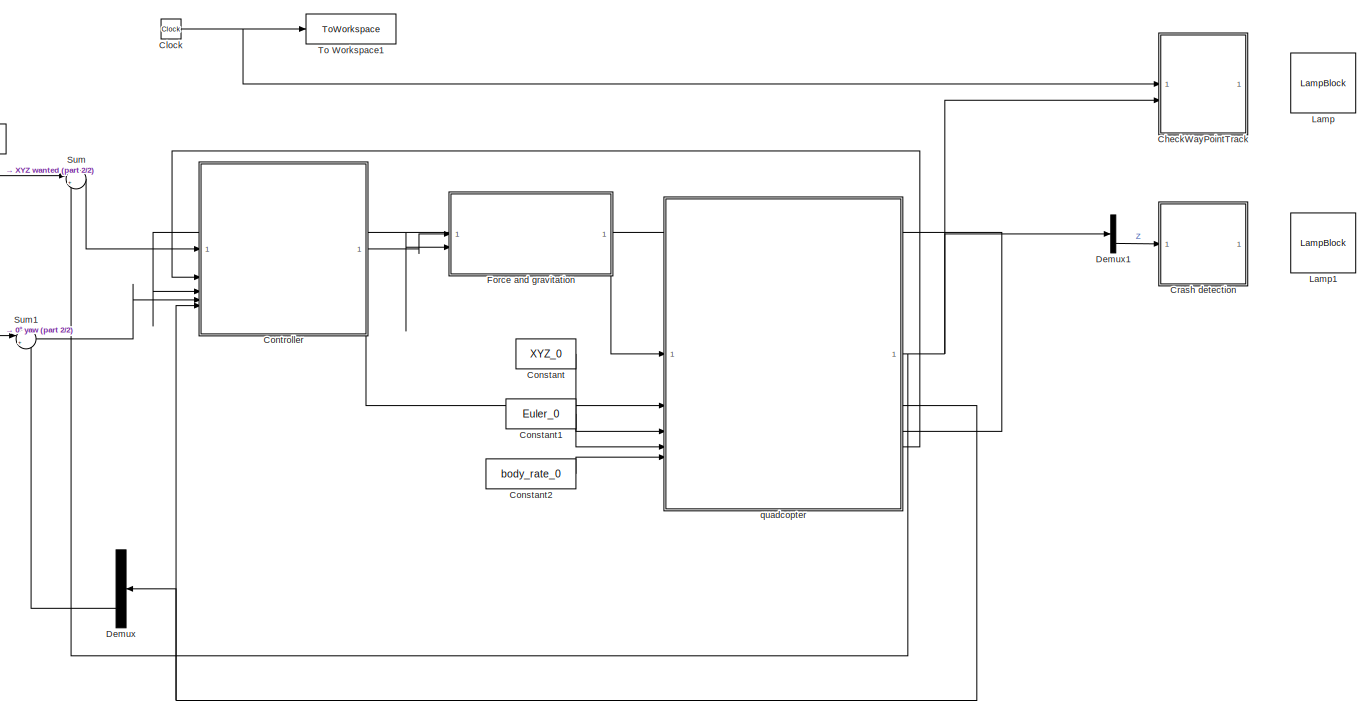
[diagram: root canvas - part 1/2, most of the canvas]
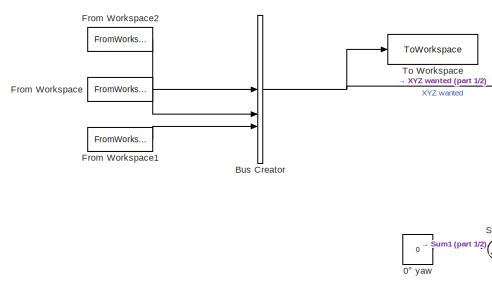
[diagram: root canvas - part 2/2, middle left region]
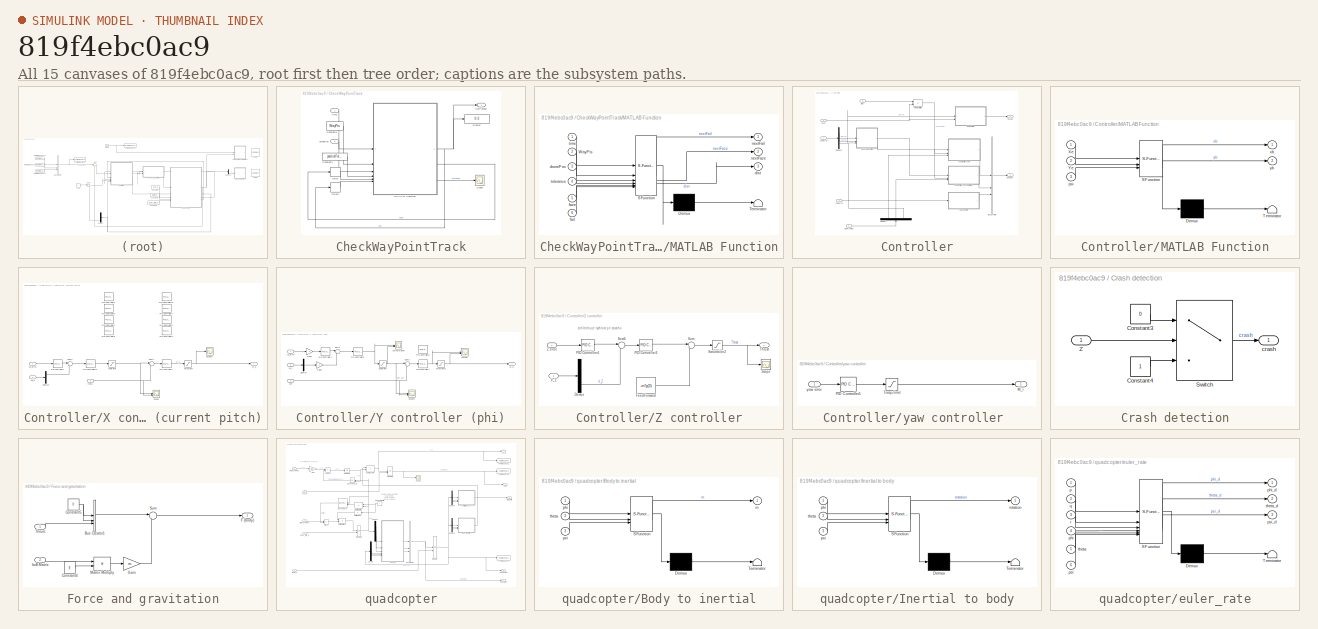
[diagram: thumbnail index - all 15 canvases of the model, root first then tree order]
MODEL slx_819f4ebc0ac9
KIND model
CONFIG AbsTol = auto
CONFIG EnableMultiTasking = off
CONFIG FixedStep = auto
CONFIG MaxStep = auto
CONFIG MinStep = auto
CONFIG RelTol = 1e-3
CONFIG SampleTimeConstraint = Unconstrained
CONFIG SolverName = VariableStepAuto
CONFIG StartTime = 0.0
CONFIG StopTime = Tfinal
BLOCK [Constant] 0° yaw
  Value = 0
BLOCK [BusCreator] Bus Creator
  DisplayOption = bar
  InheritFromInputs = on
  Inputs = 3
BLOCK [SubSystem] CheckWayPointTrack
BLOCK [Constant] CheckWayPointTrack/Constant3
  Value = WayPts
BLOCK [Constant] CheckWayPointTrack/Constant4
  Value = positionTolerance
BLOCK [Delay] CheckWayPointTrack/Delay
  DelayLength = 1
  InitialCondition = 1
  InputPortMap = u0
BLOCK [Delay] CheckWayPointTrack/Delay1
  DelayLength = 1
  InitialCondition = 0
  InputPortMap = u0
BLOCK [Display] CheckWayPointTrack/Display
  Decimation = 1
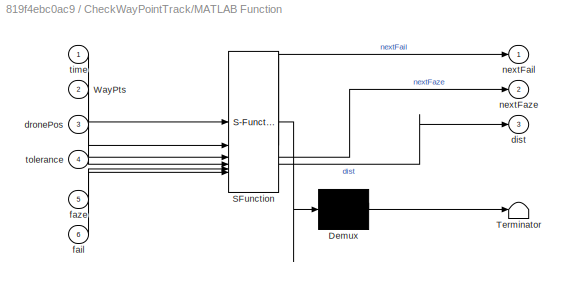
BLOCK [SubSystem] CheckWayPointTrack/MATLAB Function
  ErrorFcn = Stateflow.Translate.translate
  PermitHierarchicalResolution = ExplicitOnly
  SFBlockType = MATLAB Function
  TreatAsAtomicUnit = on
BLOCK [Demux] CheckWayPointTrack/MATLAB Function/ Demux 
  Outputs = 1
BLOCK [S-Function] CheckWayPointTrack/MATLAB Function/ SFunction 
  EnableBusSupport = on
  FunctionName = sf_sfun
  PortCounts = [6 4]
  SFcnIsStateOwnerBlock = off
  SFunctionDeploymentMode = off
  Tag = Stateflow S-Function 4
BLOCK [Terminator] CheckWayPointTrack/MATLAB Function/ Terminator 
BLOCK [Inport] CheckWayPointTrack/MATLAB Function/WayPts
  Port = 2
BLOCK [Outport] CheckWayPointTrack/MATLAB Function/dist
  Port = 3
BLOCK [Inport] CheckWayPointTrack/MATLAB Function/dronePos
  Port = 3
BLOCK [Inport] CheckWayPointTrack/MATLAB Function/fail
  Port = 6
BLOCK [Inport] CheckWayPointTrack/MATLAB Function/faze
  Port = 5
BLOCK [Outport] CheckWayPointTrack/MATLAB Function/nextFail
BLOCK [Outport] CheckWayPointTrack/MATLAB Function/nextFaze
  Port = 2
BLOCK [Inport] CheckWayPointTrack/MATLAB Function/time
BLOCK [Inport] CheckWayPointTrack/MATLAB Function/tolerance
  Port = 4
BLOCK [Outport] CheckWayPointTrack/NotPassed
BLOCK [Scope] CheckWayPointTrack/Scope
  Floating = off
  NumInputPorts = 1
  ScopeSpecificationString = Simulink.scopes.TimeScopeBlockCfg('CurrentConfiguration', extmgr.ConfigurationSet(extmgr.Configuration('Core','General UI',true),extmgr.Configuration('Core','Source UI',true),extmgr.Configuration('Sources','WiredSimulink',true,'DataLoggingVariableName','ScopeData1'),extmgr.Configuration('Visuals','Time Domain',true,'SerializedDisplays',{struct('MinYLimReal','-0.68947','MaxYLimReal','6.20524','YLab...<+1456ch>
BLOCK [Inport] CheckWayPointTrack/dronePos
  Port = 2
BLOCK [Inport] CheckWayPointTrack/time
BLOCK [Clock] Clock
BLOCK [Constant] Constant
  SampleTime = 0.01
  Value = XYZ_0
BLOCK [Constant] Constant1
  SampleTime = 0.01
  Value = Euler_0
BLOCK [Constant] Constant2
  SampleTime = 0.01
  Value = body_rate_0
BLOCK [SubSystem] Controller
BLOCK [BusCreator] Controller/Bus Creator
  DisplayOption = bar
  InheritFromInputs = on
  Inputs = 3
BLOCK [Demux] Controller/Demux1
  NameLocation = right
  Outputs = 3
BLOCK [Demux] Controller/Demux2
  Outputs = 3
BLOCK [Inport] Controller/EulerAngles
  Port = 5
BLOCK [Inport] Controller/ItoB
  Port = 3
BLOCK [Outport] Controller/M (body)
  Port = 2
BLOCK [SubSystem] Controller/MATLAB Function
  ErrorFcn = Stateflow.Translate.translate
  PermitHierarchicalResolution = ExplicitOnly
  SFBlockType = MATLAB Function
  TreatAsAtomicUnit = on
BLOCK [Demux] Controller/MATLAB Function/ Demux 
  Outputs = 1
BLOCK [S-Function] Controller/MATLAB Function/ SFunction 
  EnableBusSupport = on
  FunctionName = sf_sfun
  PortCounts = [3 3]
  SFcnIsStateOwnerBlock = off
  SFunctionDeploymentMode = off
  Tag = Stateflow S-Function 3
BLOCK [Terminator] Controller/MATLAB Function/ Terminator 
BLOCK [Inport] Controller/MATLAB Function/Xe
BLOCK [Inport] Controller/MATLAB Function/Ye
  Port = 2
BLOCK [Inport] Controller/MATLAB Function/psi
  Port = 3
BLOCK [Outport] Controller/MATLAB Function/xb
BLOCK [Outport] Controller/MATLAB Function/yb
  Port = 2
BLOCK [Product] Controller/Matrix Multiply
  Multiplication = Matrix(*)
BLOCK [Outport] Controller/Thrust
BLOCK [Inport] Controller/VXYZ
  Port = 2
BLOCK [SubSystem] Controller/X controller (current pitch)
BLOCK [Demux] Controller/X controller (current pitch)/Demux
  Outputs = 3
BLOCK [Outport] Controller/X controller (current pitch)/M_q
BLOCK [Reference] Controller/X controller (current pitch)/PID Controller1  REF=slpidlib/PID Controller
  SourceBlock = slpidlib/PID Controller
  SourceType = PID 1dof
BLOCK [Reference] Controller/X controller (current pitch)/PID Controller10  REF=slpidlib/PID Controller
  Commented = on
  SourceBlock = slpidlib/PID Controller
  SourceType = PID 1dof
BLOCK [Reference] Controller/X controller (current pitch)/PID Controller11  REF=slpidlib/PID Controller
  SourceBlock = slpidlib/PID Controller
  SourceType = PID 1dof
BLOCK [Reference] Controller/X controller (current pitch)/PID Controller2  REF=slpidlib/PID Controller
  Commented = on
  SourceBlock = slpidlib/PID Controller
  SourceType = PID 1dof
BLOCK [Reference] Controller/X controller (current pitch)/PID Controller3  REF=slpidlib/PID Controller
  Commented = on
  SourceBlock = slpidlib/PID Controller
  SourceType = PID 1dof
BLOCK [Reference] Controller/X controller (current pitch)/PID Controller4  REF=slpidlib/PID Controller
  SourceBlock = slpidlib/PID Controller
  SourceType = PID 1dof
BLOCK [Reference] Controller/X controller (current pitch)/PID Controller5  REF=slpidlib/PID Controller
  Commented = on
  SourceBlock = slpidlib/PID Controller
  SourceType = PID 1dof
BLOCK [Reference] Controller/X controller (current pitch)/PID Controller6  REF=slpidlib/PID Controller
  Commented = on
  SourceBlock = slpidlib/PID Controller
  SourceType = PID 1dof
BLOCK [Reference] Controller/X controller (current pitch)/PID Controller7  REF=slpidlib/PID Controller
  Commented = on
  SourceBlock = slpidlib/PID Controller
  SourceType = PID 1dof
BLOCK [Reference] Controller/X controller (current pitch)/PID Controller8  REF=slpidlib/PID Controller
  Commented = on
  SourceBlock = slpidlib/PID Controller
  SourceType = PID 1dof
BLOCK [Reference] Controller/X controller (current pitch)/PID Controller9  REF=slpidlib/PID Controller
  Commented = on
  SourceBlock = slpidlib/PID Controller
  SourceType = PID 1dof
BLOCK [Scope] Controller/X controller (current pitch)/Scope
  Floating = off
  NumInputPorts = 2
  ScopeSpecificationString = Simulink.scopes.TimeScopeBlockCfg('CurrentConfiguration', extmgr.ConfigurationSet(extmgr.Configuration('Core','General UI',true),extmgr.Configuration('Core','Source UI',true),extmgr.Configuration('Sources','WiredSimulink',true,'DataLoggingVariableName','ScopeData1'),extmgr.Configuration('Visuals','Time Domain',true,'SerializedDisplays',{struct('MinYLimReal','-0.10423','MaxYLimReal','0.09514','YLab...<+1429ch>
BLOCK [Scope] Controller/X controller (current pitch)/Scope1
  Floating = off
  NumInputPorts = 1
  ScopeSpecificationString = Simulink.scopes.TimeScopeBlockCfg('CurrentConfiguration', extmgr.ConfigurationSet(extmgr.Configuration('Core','General UI',true),extmgr.Configuration('Core','Source UI',true),extmgr.Configuration('Sources','WiredSimulink',true,'DataLoggingVariableName','ScopeData2'),extmgr.Configuration('Visuals','Time Domain',true,'SerializedDisplays',{struct('MinYLimReal','-1.875','MaxYLimReal','1.875','YLabelRe...<+1430ch>
BLOCK [Sum] Controller/X controller (current pitch)/Sum1
  Inputs = |+-
BLOCK [Sum] Controller/X controller (current pitch)/Sum2
  Inputs = |+-
BLOCK [Saturate] Controller/X controller (current pitch)/Torqu limit
  LowerLimit = -2
  UpperLimit = 2
BLOCK [Saturate] Controller/X controller (current pitch)/angle limit
  LowerLimit = -1.05
  UpperLimit = 1.05
BLOCK [Inport] Controller/X controller (current pitch)/theta
  Port = 3
BLOCK [Inport] Controller/X controller (current pitch)/vb_x
  Port = 2
BLOCK [Inport] Controller/X controller (current pitch)/xb_error 
BLOCK [Inport] Controller/XYZ error
BLOCK [SubSystem] Controller/Y controller (phi)
BLOCK [Saturate] Controller/Y controller (phi)/ angle limit
  LowerLimit = -1.05
  UpperLimit = 1.05
BLOCK [Demux] Controller/Y controller (phi)/Demux
  Outputs = 3
BLOCK [Gain] Controller/Y controller (phi)/Gain1
  Gain = -1
BLOCK [Gain] Controller/Y controller (phi)/Gain2
  Gain = -1
BLOCK [Outport] Controller/Y controller (phi)/M_p
BLOCK [Reference] Controller/Y controller (phi)/PID Controller1  REF=slpidlib/PID Controller
  SourceBlock = slpidlib/PID Controller
  SourceType = PID 1dof
BLOCK [Reference] Controller/Y controller (phi)/PID Controller3  REF=slpidlib/PID Controller
  SourceBlock = slpidlib/PID Controller
  SourceType = PID 1dof
BLOCK [Reference] Controller/Y controller (phi)/PID Controller4  REF=slpidlib/PID Controller
  SourceBlock = slpidlib/PID Controller
  SourceType = PID 1dof
BLOCK [Reference] Controller/Y controller (phi)/PID Controller8  REF=slpidlib/PID Controller
  Commented = on
  SourceBlock = slpidlib/PID Controller
  SourceType = PID 1dof
BLOCK [Scope] Controller/Y controller (phi)/Scope1
  Floating = off
  NumInputPorts = 2
  ScopeSpecificationString = Simulink.scopes.TimeScopeBlockCfg('CurrentConfiguration', extmgr.ConfigurationSet(extmgr.Configuration('Core','General UI',true),extmgr.Configuration('Core','Source UI',true),extmgr.Configuration('Sources','WiredSimulink',true,'DataLoggingVariableName','ScopeData1'),extmgr.Configuration('Visuals','Time Domain',true,'SerializedDisplays',{struct('MinYLimReal','-0.11184','MaxYLimReal','0.10606','YLab...<+1423ch>
BLOCK [Sum] Controller/Y controller (phi)/Sum1
  Inputs = |+-
BLOCK [Sum] Controller/Y controller (phi)/Sum3
  Inputs = |+-
BLOCK [Saturate] Controller/Y controller (phi)/Torqu limit1
  LowerLimit = -2
  UpperLimit = 2
BLOCK [Scope] Controller/Y controller (phi)/Torque
  Floating = off
  NumInputPorts = 2
  ScopeSpecificationString = Simulink.scopes.TimeScopeBlockCfg('CurrentConfiguration', extmgr.ConfigurationSet(extmgr.Configuration('Core','General UI',true),extmgr.Configuration('Core','Source UI',true),extmgr.Configuration('Sources','WiredSimulink',true,'DataLoggingVariableName','ScopeData2'),extmgr.Configuration('Visuals','Time Domain',true,'SerializedDisplays',{struct('MinYLimReal','-0.06281','MaxYLimReal','0.02474','YLab...<+1550ch>
BLOCK [Inport] Controller/Y controller (phi)/phi
  Port = 3
BLOCK [Scope] Controller/Y controller (phi)/phi saturation
  Floating = off
  NumInputPorts = 2
  ScopeSpecificationString = Simulink.scopes.TimeScopeBlockCfg('CurrentConfiguration', extmgr.ConfigurationSet(extmgr.Configuration('Core','General UI',true),extmgr.Configuration('Core','Source UI',true),extmgr.Configuration('Sources','WiredSimulink',true,'DataLoggingVariableName','ScopeData2'),extmgr.Configuration('Visuals','Time Domain',true,'SerializedDisplays',{struct('MinYLimReal','-0.09557','MaxYLimReal','0.09264','YLab...<+1438ch>
BLOCK [Inport] Controller/Y controller (phi)/vb_y
  Port = 2
BLOCK [Inport] Controller/Y controller (phi)/yb_error 
BLOCK [SubSystem] Controller/Z controller
BLOCK [Demux] Controller/Z controller/Demux
  Outputs = 3
BLOCK [Constant] Controller/Z controller/FeedForward
  Value = -m*g(3)
BLOCK [Reference] Controller/Z controller/PID Controller3  REF=slpidlib/PID Controller
  SourceBlock = slpidlib/PID Controller
  SourceType = PID 1dof
BLOCK [Reference] Controller/Z controller/PID Controller4  REF=slpidlib/PID Controller
  SourceBlock = slpidlib/PID Controller
  SourceType = PID 1dof
BLOCK [Saturate] Controller/Z controller/Saturation2
  LowerLimit = -30
  UpperLimit = 30
BLOCK [Scope] Controller/Z controller/Scope
  Floating = off
  NumInputPorts = 1
  ScopeSpecificationString = Simulink.scopes.TimeScopeBlockCfg('CurrentConfiguration', extmgr.ConfigurationSet(extmgr.Configuration('Core','General UI',true),extmgr.Configuration('Core','Source UI',true),extmgr.Configuration('Sources','WiredSimulink',true,'DataLoggingVariableName','ScopeData3'),extmgr.Configuration('Visuals','Time Domain',true,'SerializedDisplays',{struct('MinYLimReal','-5.22862','MaxYLimReal','5.39625','YLab...<+1564ch>
BLOCK [Sum] Controller/Z controller/Sum
  Inputs = |++
BLOCK [Sum] Controller/Z controller/Sum3
  Inputs = |+-
BLOCK [Outport] Controller/Z controller/Thrust
BLOCK [Inport] Controller/Z controller/V_Z
  Port = 2
BLOCK [Inport] Controller/Z controller/Z error
BLOCK [SubSystem] Controller/yaw controller 
BLOCK [Outport] Controller/yaw controller /M_r
BLOCK [Reference] Controller/yaw controller /PID Controller1  REF=slpidlib/PID Controller
  SourceBlock = slpidlib/PID Controller
  SourceType = PID 1dof
BLOCK [Saturate] Controller/yaw controller /Torqu limit
  LowerLimit = -1.5
  UpperLimit = 1.5
BLOCK [Inport] Controller/yaw controller /yaw error
BLOCK [Inport] Controller/yaw error
  Port = 4
BLOCK [SubSystem] Crash detection
BLOCK [Constant] Crash detection/Constant3
  Value = 0
BLOCK [Constant] Crash detection/Constant4
BLOCK [Switch] Crash detection/Switch
  InputSameDT = off
  SaturateOnIntegerOverflow = off
BLOCK [Inport] Crash detection/Z
BLOCK [Outport] Crash detection/crash
BLOCK [Demux] Demux
  NameLocation = top
  Outputs = 3
BLOCK [Demux] Demux1
  Outputs = 3
BLOCK [SubSystem] Force and gravitation
BLOCK [BusCreator] Force and gravitation/Bus Creator1
  DisplayOption = bar
  InheritFromInputs = on
  Inputs = 3
BLOCK [Constant] Force and gravitation/Constant4
  SampleTime = 0.01
  Value = g
BLOCK [Constant] Force and gravitation/Constant5
  SampleTime = 0.01
  Value = 0
BLOCK [Outport] Force and gravitation/F (body)
BLOCK [Gain] Force and gravitation/Gain
  Gain = m
BLOCK [Inport] Force and gravitation/ItoB Matrix
  Port = 2
BLOCK [Product] Force and gravitation/Matrix Multiply
  Multiplication = Matrix(*)
BLOCK [Sum] Force and gravitation/Sum
  Inputs = |++
BLOCK [Inport] Force and gravitation/Thrust
BLOCK [FromWorkspace] From Workspace
  SampleTime = ts
  VariableName = Ycmd
BLOCK [FromWorkspace] From Workspace1
  SampleTime = ts
  VariableName = Zcmd
BLOCK [FromWorkspace] From Workspace2
  SampleTime = ts
  VariableName = Xcmd
BLOCK [LampBlock] Lamp
  LabelPosition = Hide
BLOCK [LampBlock] Lamp1
  LabelPosition = Hide
BLOCK [Sum] Sum
  Inputs = |+-
BLOCK [Sum] Sum1
  Inputs = |+-
BLOCK [ToWorkspace] To Workspace
  FixptAsFi = on
  MaxDataPoints = inf
  SampleTime = ts
  VariableName = Tar
BLOCK [ToWorkspace] To Workspace1
  FixptAsFi = on
  MaxDataPoints = inf
  SampleTime = ts
  VariableName = time
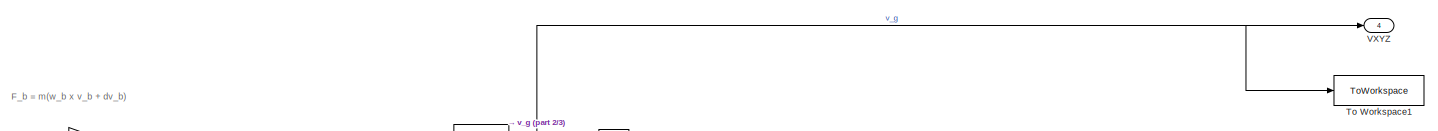
[diagram: quadcopter - part 1/3, full width, top band]
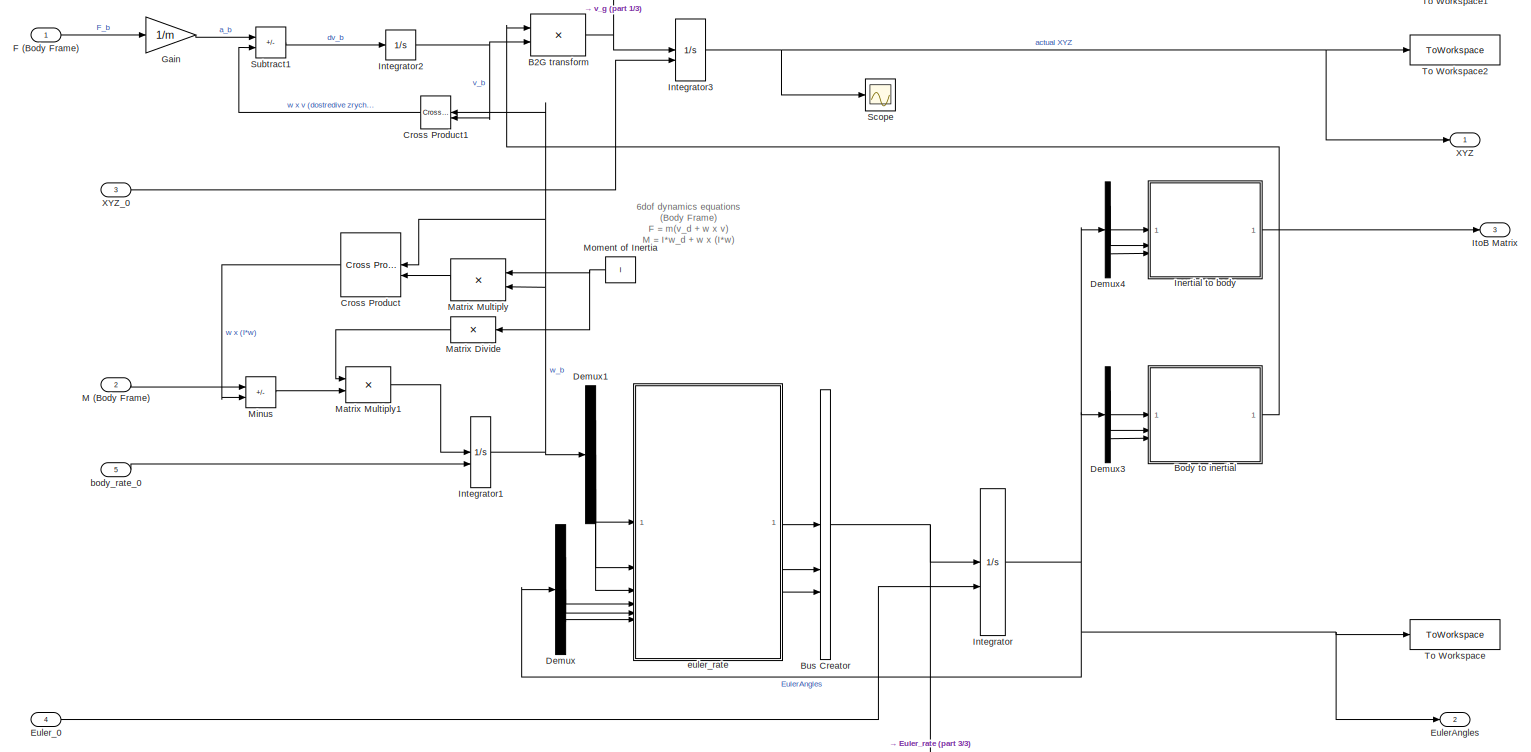
[diagram: quadcopter - part 2/3, most of the canvas]
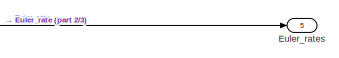
[diagram: quadcopter - part 3/3, bottom right region]
BLOCK [SubSystem] quadcopter
BLOCK [Product] quadcopter/B2G transform
  Multiplication = Matrix(*)
BLOCK [SubSystem] quadcopter/Body to inertial
  ErrorFcn = Stateflow.Translate.translate
  PermitHierarchicalResolution = ExplicitOnly
  SFBlockType = MATLAB Function
  TreatAsAtomicUnit = on
BLOCK [Demux] quadcopter/Body to inertial/ Demux 
  Outputs = 1
BLOCK [S-Function] quadcopter/Body to inertial/ SFunction 
  EnableBusSupport = on
  FunctionName = sf_sfun
  PortCounts = [3 2]
  SFcnIsStateOwnerBlock = off
  SFunctionDeploymentMode = off
  Tag = Stateflow S-Function 1
BLOCK [Terminator] quadcopter/Body to inertial/ Terminator 
BLOCK [Outport] quadcopter/Body to inertial/m
BLOCK [Inport] quadcopter/Body to inertial/phi
BLOCK [Inport] quadcopter/Body to inertial/psi
  Port = 3
BLOCK [Inport] quadcopter/Body to inertial/theta
  Port = 2
BLOCK [BusCreator] quadcopter/Bus Creator
  DisplayOption = bar
  InheritFromInputs = on
  Inputs = 3
BLOCK [Reference] quadcopter/Cross Product  REF=vrlib/Utilities/Cross Product
  NameLocation = top
  SourceBlock = vrlib/Utilities/Cross Product
  SourceType = Cross Product
BLOCK [Reference] quadcopter/Cross Product1  REF=vrlib/Utilities/Cross Product
  NameLocation = top
  SourceBlock = vrlib/Utilities/Cross Product
  SourceType = Cross Product
BLOCK [Demux] quadcopter/Demux
  Outputs = 3
BLOCK [Demux] quadcopter/Demux1
  Outputs = 3
BLOCK [Demux] quadcopter/Demux3
  Outputs = 3
BLOCK [Demux] quadcopter/Demux4
  Outputs = 3
BLOCK [Outport] quadcopter/EulerAngles
  Port = 2
BLOCK [Inport] quadcopter/Euler_0
  Port = 4
BLOCK [Outport] quadcopter/Euler_rates
  Port = 5
BLOCK [Inport] quadcopter/F (Body Frame)
BLOCK [Gain] quadcopter/Gain
  Gain = 1/m
BLOCK [SubSystem] quadcopter/Inertial to body
  ErrorFcn = Stateflow.Translate.translate
  PermitHierarchicalResolution = ExplicitOnly
  SFBlockType = MATLAB Function
  TreatAsAtomicUnit = on
BLOCK [Demux] quadcopter/Inertial to body/ Demux 
  Outputs = 1
BLOCK [S-Function] quadcopter/Inertial to body/ SFunction 
  EnableBusSupport = on
  FunctionName = sf_sfun
  PortCounts = [3 2]
  SFcnIsStateOwnerBlock = off
  SFunctionDeploymentMode = off
  Tag = Stateflow S-Function 5
BLOCK [Terminator] quadcopter/Inertial to body/ Terminator 
BLOCK [Inport] quadcopter/Inertial to body/phi
BLOCK [Inport] quadcopter/Inertial to body/psi
  Port = 3
BLOCK [Outport] quadcopter/Inertial to body/rotation
BLOCK [Inport] quadcopter/Inertial to body/theta
  Port = 2
BLOCK [Integrator] quadcopter/Integrator
  ContinuousStateAttributes = 'EulerAngle'
  InitialConditionSource = external
BLOCK [Integrator] quadcopter/Integrator1
  ContinuousStateAttributes = 'EulerAngle'
  InitialConditionSource = external
BLOCK [Integrator] quadcopter/Integrator2
BLOCK [Integrator] quadcopter/Integrator3
  InitialConditionSource = external
BLOCK [Outport] quadcopter/ItoB Matrix
  Port = 3
BLOCK [Inport] quadcopter/M (Body Frame)
  Port = 2
BLOCK [Product] quadcopter/Matrix Divide
  Inputs = /
  Multiplication = Matrix(*)
  NameLocation = top
BLOCK [Product] quadcopter/Matrix Multiply
  Multiplication = Matrix(*)
  NameLocation = top
BLOCK [Product] quadcopter/Matrix Multiply1
  Multiplication = Matrix(*)
BLOCK [Sum] quadcopter/Minus
  IconShape = rectangular
  Inputs = +-
BLOCK [Constant] quadcopter/Moment of Inertia
  NameLocation = top
  Value = I
BLOCK [Scope] quadcopter/Scope
  Floating = off
  NumInputPorts = 1
  ScopeSpecificationString = Simulink.scopes.TimeScopeBlockCfg('CurrentConfiguration', extmgr.ConfigurationSet(extmgr.Configuration('Core','General UI',true),extmgr.Configuration('Core','Source UI',true),extmgr.Configuration('Sources','WiredSimulink',true),extmgr.Configuration('Visuals','Time Domain',true,'SerializedDisplays',{struct('MinYLimReal','-2.9474','MaxYLimReal','5.97441','YLabelReal','','MinYLimMag','0.00000','MaxYL...<+1498ch>
BLOCK [Sum] quadcopter/Subtract1
  IconShape = rectangular
  Inputs = +-
BLOCK [ToWorkspace] quadcopter/To Workspace
  FixptAsFi = on
  MaxDataPoints = inf
  SampleTime = ts
  VariableName = EulerAngles
BLOCK [ToWorkspace] quadcopter/To Workspace1
  FixptAsFi = on
  MaxDataPoints = inf
  SampleTime = ts
  VariableName = VXYZ
BLOCK [ToWorkspace] quadcopter/To Workspace2
  FixptAsFi = on
  MaxDataPoints = inf
  SampleTime = ts
  VariableName = XYZ
BLOCK [Outport] quadcopter/VXYZ
  Port = 4
BLOCK [Outport] quadcopter/XYZ
BLOCK [Inport] quadcopter/XYZ_0
  Port = 3
BLOCK [Inport] quadcopter/body_rate_0
  Port = 5
BLOCK [SubSystem] quadcopter/euler_rate
  ErrorFcn = Stateflow.Translate.translate
  PermitHierarchicalResolution = ExplicitOnly
  SFBlockType = MATLAB Function
  TreatAsAtomicUnit = on
BLOCK [Demux] quadcopter/euler_rate/ Demux 
  Outputs = 1
BLOCK [S-Function] quadcopter/euler_rate/ SFunction 
  EnableBusSupport = on
  FunctionName = sf_sfun
  PortCounts = [6 4]
  SFcnIsStateOwnerBlock = off
  SFunctionDeploymentMode = off
  Tag = Stateflow S-Function 2
BLOCK [Terminator] quadcopter/euler_rate/ Terminator 
BLOCK [Inport] quadcopter/euler_rate/p
BLOCK [Inport] quadcopter/euler_rate/phi
  Port = 4
BLOCK [Outport] quadcopter/euler_rate/phi_d
BLOCK [Inport] quadcopter/euler_rate/psi
  Port = 6
BLOCK [Outport] quadcopter/euler_rate/psi_d
  Port = 3
BLOCK [Inport] quadcopter/euler_rate/q
  Port = 2
BLOCK [Inport] quadcopter/euler_rate/r
  Port = 3
BLOCK [Inport] quadcopter/euler_rate/theta
  Port = 5
BLOCK [Outport] quadcopter/euler_rate/theta_d
  Port = 2
ANNOTATION Controller/Z controller: zohlednuje rychlost pri zasahu
ANNOTATION quadcopter: F_b = m ( w_b x v_b + dv_b )
ANNOTATION quadcopter: 6dof dynamics equations (Body Frame) F = m(v_d + w x v) M = I*w_d + w x (I*w)
LINE 0° yaw:1 -> Sum1:1
NET Bus Creator:1 -> Sum:1, To Workspace:1
LINE CheckWayPointTrack/Constant3:1 -> CheckWayPointTrack/MATLAB Function:2
LINE CheckWayPointTrack/Constant4:1 -> CheckWayPointTrack/MATLAB Function:4
LINE CheckWayPointTrack/Delay1:1 -> CheckWayPointTrack/MATLAB Function:6
LINE CheckWayPointTrack/Delay:1 -> CheckWayPointTrack/MATLAB Function:5
NET CheckWayPointTrack/MATLAB Function:1 -> CheckWayPointTrack/Delay1:1, CheckWayPointTrack/Display:1, CheckWayPointTrack/NotPassed:1
LINE CheckWayPointTrack/MATLAB Function:2 -> CheckWayPointTrack/Delay:1
LINE CheckWayPointTrack/MATLAB Function:3 -> CheckWayPointTrack/Scope:1
LINE CheckWayPointTrack/dronePos:1 -> CheckWayPointTrack/MATLAB Function:3
LINE CheckWayPointTrack/time:1 -> CheckWayPointTrack/MATLAB Function:1
NET Clock:1 -> CheckWayPointTrack:1, To Workspace1:1
LINE Constant1:1 -> quadcopter:4
LINE Constant2:1 -> quadcopter:5
LINE Constant:1 -> quadcopter:3
LINE Controller/Bus Creator:1 -> Controller/M (body):1
LINE Controller/Demux1:1 -> Controller/Y controller (phi):3
LINE Controller/Demux1:2 -> Controller/X controller (current pitch):3
LINE Controller/Demux1:3 -> Controller/MATLAB Function:3
LINE Controller/Demux2:1 -> Controller/MATLAB Function:1
LINE Controller/Demux2:2 -> Controller/MATLAB Function:2
LINE Controller/Demux2:3 -> Controller/Z controller:1
LINE Controller/EulerAngles:1 -> Controller/Demux1:1
LINE Controller/ItoB:1 -> Controller/Matrix Multiply:1
LINE Controller/MATLAB Function:1 -> Controller/X controller (current pitch):1
LINE Controller/MATLAB Function:2 -> Controller/Y controller (phi):1
NET Controller/Matrix Multiply:1 -> Controller/X controller (current pitch):2, Controller/Y controller (phi):2
NET Controller/VXYZ:1 -> Controller/Matrix Multiply:2, Controller/Z controller:2
LINE Controller/X controller (current pitch)/Demux:1 -> Controller/X controller (current pitch)/Sum2:2
LINE Controller/X controller (current pitch)/PID Controller11:1 -> Controller/X controller (current pitch)/angle limit:1
LINE Controller/X controller (current pitch)/PID Controller1:1 -> Controller/X controller (current pitch)/Torqu limit:1
LINE Controller/X controller (current pitch)/PID Controller4:1 -> Controller/X controller (current pitch)/Sum2:1
LINE Controller/X controller (current pitch)/Sum1:1 -> Controller/X controller (current pitch)/PID Controller1:1
LINE Controller/X controller (current pitch)/Sum2:1 -> Controller/X controller (current pitch)/PID Controller11:1
NET Controller/X controller (current pitch)/Torqu limit:1 -> Controller/X controller (current pitch)/M_q:1, Controller/X controller (current pitch)/Scope1:1
NET Controller/X controller (current pitch)/angle limit:1 -> Controller/X controller (current pitch)/Scope:1, Controller/X controller (current pitch)/Sum1:1
NET Controller/X controller (current pitch)/theta:1 -> Controller/X controller (current pitch)/Scope:2, Controller/X controller (current pitch)/Sum1:2
LINE Controller/X controller (current pitch)/vb_x:1 -> Controller/X controller (current pitch)/Demux:1
LINE Controller/X controller (current pitch)/xb_error :1 -> Controller/X controller (current pitch)/PID Controller4:1
LINE Controller/X controller (current pitch):1 -> Controller/Bus Creator:2
LINE Controller/XYZ error:1 -> Controller/Demux2:1
NET Controller/Y controller (phi)/ angle limit:1 -> Controller/Y controller (phi)/Scope1:1, Controller/Y controller (phi)/Sum3:1, Controller/Y controller (phi)/phi saturation:2
LINE Controller/Y controller (phi)/Demux:2 -> Controller/Y controller (phi)/Gain2:1
LINE Controller/Y controller (phi)/Gain1:1 -> Controller/Y controller (phi)/PID Controller1:1
LINE Controller/Y controller (phi)/Gain2:1 -> Controller/Y controller (phi)/Sum1:2
LINE Controller/Y controller (phi)/PID Controller1:1 -> Controller/Y controller (phi)/Sum1:1
NET Controller/Y controller (phi)/PID Controller3:1 -> Controller/Y controller (phi)/ angle limit:1, Controller/Y controller (phi)/phi saturation:1
NET Controller/Y controller (phi)/PID Controller4:1 -> Controller/Y controller (phi)/Torqu limit1:1, Controller/Y controller (phi)/Torque:1
LINE Controller/Y controller (phi)/Sum1:1 -> Controller/Y controller (phi)/PID Controller3:1
LINE Controller/Y controller (phi)/Sum3:1 -> Controller/Y controller (phi)/PID Controller4:1
NET Controller/Y controller (phi)/Torqu limit1:1 -> Controller/Y controller (phi)/M_p:1, Controller/Y controller (phi)/Torque:2
NET Controller/Y controller (phi)/phi:1 -> Controller/Y controller (phi)/Scope1:2, Controller/Y controller (phi)/Sum3:2
LINE Controller/Y controller (phi)/vb_y:1 -> Controller/Y controller (phi)/Demux:1
LINE Controller/Y controller (phi)/yb_error :1 -> Controller/Y controller (phi)/Gain1:1
LINE Controller/Y controller (phi):1 -> Controller/Bus Creator:1
LINE Controller/Z controller/Demux:3 -> Controller/Z controller/Sum3:2
LINE Controller/Z controller/FeedForward:1 -> Controller/Z controller/Sum:2
LINE Controller/Z controller/PID Controller3:1 -> Controller/Z controller/Sum:1
LINE Controller/Z controller/PID Controller4:1 -> Controller/Z controller/Sum3:1
NET Controller/Z controller/Saturation2:1 -> Controller/Z controller/Scope:1, Controller/Z controller/Thrust:1
LINE Controller/Z controller/Sum3:1 -> Controller/Z controller/PID Controller3:1
LINE Controller/Z controller/Sum:1 -> Controller/Z controller/Saturation2:1
LINE Controller/Z controller/V_Z:1 -> Controller/Z controller/Demux:1
LINE Controller/Z controller/Z error:1 -> Controller/Z controller/PID Controller4:1
LINE Controller/Z controller:1 -> Controller/Thrust:1
LINE Controller/yaw controller /PID Controller1:1 -> Controller/yaw controller /Torqu limit:1
LINE Controller/yaw controller /Torqu limit:1 -> Controller/yaw controller /M_r:1
LINE Controller/yaw controller /yaw error:1 -> Controller/yaw controller /PID Controller1:1
LINE Controller/yaw controller :1 -> Controller/Bus Creator:3
LINE Controller/yaw error:1 -> Controller/yaw controller :1
LINE Controller:1 -> Force and gravitation:1
LINE Controller:2 -> quadcopter:2
LINE Crash detection/Constant3:1 -> Crash detection/Switch:1
LINE Crash detection/Constant4:1 -> Crash detection/Switch:3
LINE Crash detection/Switch:1 -> Crash detection/crash:1
LINE Crash detection/Z:1 -> Crash detection/Switch:2
LINE Demux1:3 -> Crash detection:1
LINE Demux:3 -> Sum1:2
LINE Force and gravitation/Bus Creator1:1 -> Force and gravitation/Sum:1
LINE Force and gravitation/Constant4:1 -> Force and gravitation/Matrix Multiply:2
NET Force and gravitation/Constant5:1 -> Force and gravitation/Bus Creator1:1, Force and gravitation/Bus Creator1:2
LINE Force and gravitation/Gain:1 -> Force and gravitation/Sum:2
LINE Force and gravitation/ItoB Matrix:1 -> Force and gravitation/Matrix Multiply:1
LINE Force and gravitation/Matrix Multiply:1 -> Force and gravitation/Gain:1
LINE Force and gravitation/Sum:1 -> Force and gravitation/F (body):1
LINE Force and gravitation/Thrust:1 -> Force and gravitation/Bus Creator1:3
LINE Force and gravitation:1 -> quadcopter:1
LINE From Workspace1:1 -> Bus Creator:3
LINE From Workspace2:1 -> Bus Creator:1
LINE From Workspace:1 -> Bus Creator:2
LINE Sum1:1 -> Controller:4
LINE Sum:1 -> Controller:1
NET quadcopter/B2G transform:1 -> quadcopter/Integrator3:1, quadcopter/To Workspace1:1, quadcopter/VXYZ:1
LINE quadcopter/Body to inertial:1 -> quadcopter/B2G transform:1
NET quadcopter/Bus Creator:1 -> quadcopter/Euler_rates:1, quadcopter/Integrator:1
LINE quadcopter/Cross Product1:1 -> quadcopter/Subtract1:2
LINE quadcopter/Cross Product:1 -> quadcopter/Minus:2
LINE quadcopter/Demux1:1 -> quadcopter/euler_rate:1
LINE quadcopter/Demux1:2 -> quadcopter/euler_rate:2
LINE quadcopter/Demux1:3 -> quadcopter/euler_rate:3
LINE quadcopter/Demux3:1 -> quadcopter/Body to inertial:1
LINE quadcopter/Demux3:2 -> quadcopter/Body to inertial:2
LINE quadcopter/Demux3:3 -> quadcopter/Body to inertial:3
LINE quadcopter/Demux4:1 -> quadcopter/Inertial to body:1
LINE quadcopter/Demux4:2 -> quadcopter/Inertial to body:2
LINE quadcopter/Demux4:3 -> quadcopter/Inertial to body:3
LINE quadcopter/Demux:1 -> quadcopter/euler_rate:4
LINE quadcopter/Demux:2 -> quadcopter/euler_rate:5
LINE quadcopter/Demux:3 -> quadcopter/euler_rate:6
LINE quadcopter/Euler_0:1 -> quadcopter/Integrator:2
LINE quadcopter/F (Body Frame):1 -> quadcopter/Gain:1
LINE quadcopter/Gain:1 -> quadcopter/Subtract1:1
LINE quadcopter/Inertial to body:1 -> quadcopter/ItoB Matrix:1
NET quadcopter/Integrator1:1 -> quadcopter/Cross Product1:1, quadcopter/Cross Product:1, quadcopter/Demux1:1, quadcopter/Matrix Multiply:2
NET quadcopter/Integrator2:1 -> quadcopter/B2G transform:2, quadcopter/Cross Product1:2
NET quadcopter/Integrator3:1 -> quadcopter/Scope:1, quadcopter/To Workspace2:1, quadcopter/XYZ:1
NET quadcopter/Integrator:1 -> quadcopter/Demux3:1, quadcopter/Demux4:1, quadcopter/Demux:1, quadcopter/EulerAngles:1, quadcopter/To Workspace:1
LINE quadcopter/M (Body Frame):1 -> quadcopter/Minus:1
LINE quadcopter/Matrix Divide:1 -> quadcopter/Matrix Multiply1:1
LINE quadcopter/Matrix Multiply1:1 -> quadcopter/Integrator1:1
LINE quadcopter/Matrix Multiply:1 -> quadcopter/Cross Product:2
LINE quadcopter/Minus:1 -> quadcopter/Matrix Multiply1:2
NET quadcopter/Moment of Inertia:1 -> quadcopter/Matrix Divide:1, quadcopter/Matrix Multiply:1
LINE quadcopter/Subtract1:1 -> quadcopter/Integrator2:1
LINE quadcopter/XYZ_0:1 -> quadcopter/Integrator3:2
LINE quadcopter/body_rate_0:1 -> quadcopter/Integrator1:2
LINE quadcopter/euler_rate:1 -> quadcopter/Bus Creator:1
LINE quadcopter/euler_rate:2 -> quadcopter/Bus Creator:2
LINE quadcopter/euler_rate:3 -> quadcopter/Bus Creator:3
NET quadcopter:1 -> CheckWayPointTrack:2, Demux1:1, Sum:2
NET quadcopter:2 -> Controller:5, Demux:1
NET quadcopter:3 -> Controller:3, Force and gravitation:2
LINE quadcopter:4 -> Controller:2
note: NET lines group one-source signal fan-out (src -> all destinations, sorted); 1:1 wires keep LINE
CHART quadcopter/Body to inertial states=1 transitions=1
  STATE_LABEL 'eML_blk_kernel()'
  STATE_LABEL 'SCRIPT:\nfunction m = fcn(phi,theta,psi)\n    T_BtoV2 = [\n                [1 0 0];\n                [0 cos(-phi) sin(-phi)];\n                [0 -sin(-phi) cos(-phi)]\n              ];\n    T_V2toV1 = [\n                [cos(-theta) 0 -sin(-theta)];\n                [0 1 0];\n                [sin(-theta) 0 cos(-theta)]\n               ];\n    T_V1toI = [\n                [cos(-psi) sin(-psi) 0];\n             ...<+109ch>'
CHART quadcopter/euler_rate states=1 transitions=1
  STATE_LABEL 'eML_blk_kernel()'
  STATE_LABEL 'SCRIPT:\nfunction [phi_d,theta_d,psi_d] = fcn(p,q,r,phi,theta,psi)\n    D = [[1 sin(phi)*tan(theta) cos(phi)*tan(theta)];\n         [0 cos(phi) -sin(phi)];\n         [0 sin(phi)/cos(theta) cos(phi)/cos(theta)]];\n    euler_rate = D*[p;q;r];\n    phi_d = euler_rate(1);\n    theta_d = euler_rate(2);\n    psi_d = euler_rate(3);\n'
CHART Controller/MATLAB Function states=1 transitions=1
  STATE_LABEL 'eML_blk_kernel()'
  STATE_LABEL 'SCRIPT:\nfunction [xb,yb] = fcn(Xe,Ye,psi)\n    m = [[cos(psi) sin(psi)];[-sin(psi) cos(psi)]];\n    pos = m*[Xe;Ye];\n    xb = pos(1);\n    yb = pos(2);\n'
CHART CheckWayPointTrack/MATLAB Function states=1 transitions=1
  STATE_LABEL 'eML_blk_kernel()'
  STATE_LABEL 'SCRIPT:\nfunction [nextFail, nextFaze, dist] = check_waypoints(time, WayPts, dronePos, tolerance, faze, fail)\n\n    nextFail = fail;\n    nextFaze = faze;\n    dist = 0;\n\n    if faze > size(WayPts,1)\n        return\n    end\n    criticalTime = WayPts(faze,4);\n    dist = abs(norm(WayPts(faze,1:3)) - norm(dronePos));\n    if dist <= tolerance\n        nextFaze = faze + 1;\n    else \n        nextFaze = faze;\n...<+164ch>'
CHART quadcopter/Inertial to body states=1 transitions=1
  STATE_LABEL 'eML_blk_kernel()'
  STATE_LABEL 'SCRIPT:\nfunction rotation = RollPitchYaw2Rotation(phi,theta,psi)\n\n    % Rotation matrices\n    R3 = [cos(psi) sin(psi) 0;...\n          -sin(psi) cos(psi) 0;...\n          0 0 1];\n    R2 = [cos(theta) 0 -sin(theta);...\n          0 1 0;...\n          sin(theta) 0 cos(theta)];\n    R1 = [1 0 0;...\n          0 cos(phi) sin(phi);...\n          0 -sin(phi) cos(phi)];\n    \n    % Rotation\n    rotation = R1 * R...<+12ch>'
CHART  states=0 transitions=0
CHART  states=0 transitions=0
CHART  states=0 transitions=0
CHART  states=0 transitions=0
CHART  states=0 transitions=0
